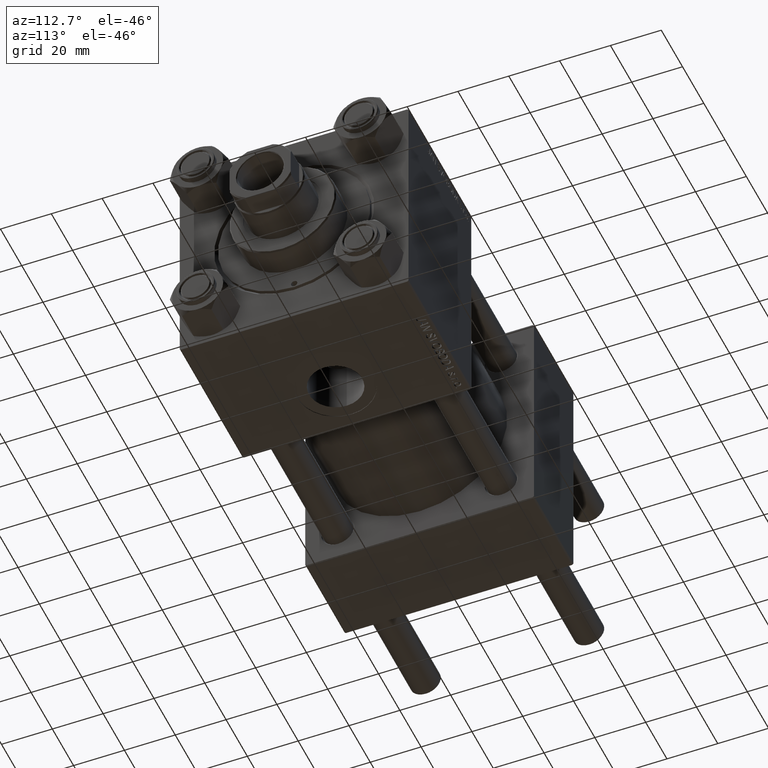
[diagram: clean part render]
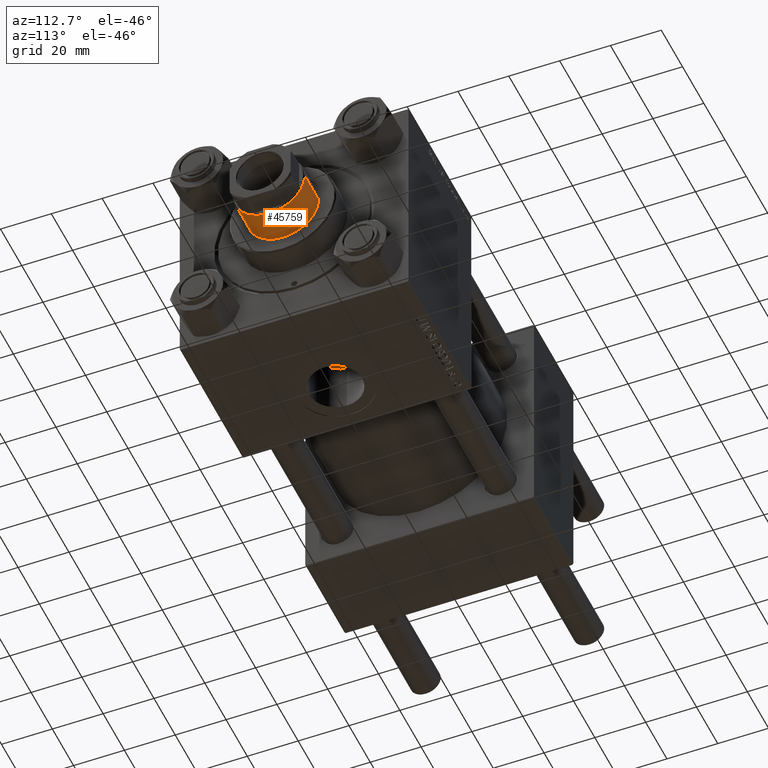
[diagram: same view with one face highlighted and labeled with its STEP entity id]
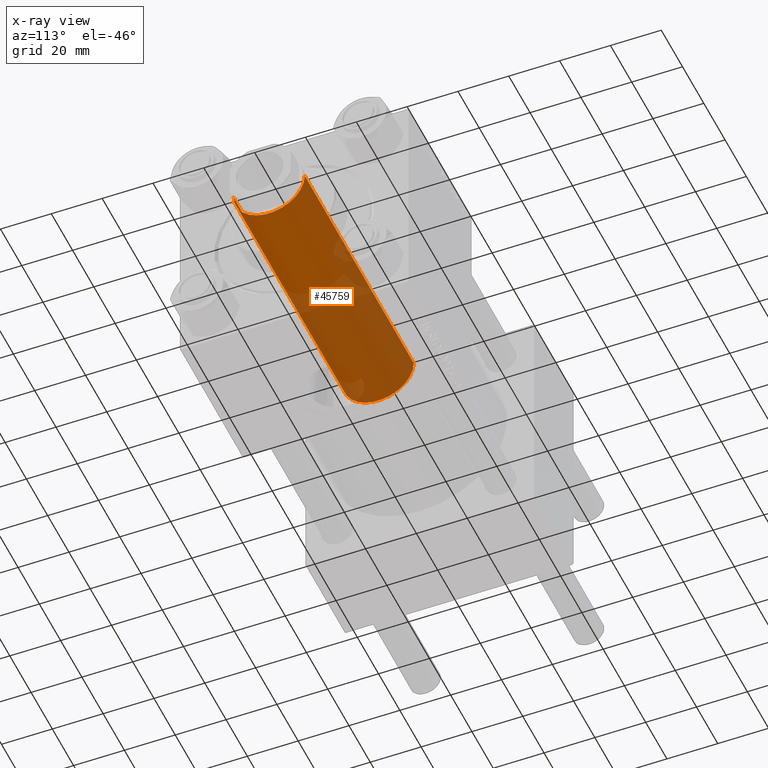
[diagram: x-ray of the same camera — body ghosted, the highlighted face saturated]
A machine part, auxiliary view. The second image highlights one B-rep face of the part: STEP entity #45759.
The next image is the same camera in x-ray: the body ghosted, the highlighted face saturated — about 58% of this face is hidden behind the body in this view.
In plain terms, the highlighted cylindrical surface (partial cylindrical patch) has radius 14 mm, axis along (-1, 0, 0).
Its self-contained STEP definition (entity closure, byte-faithful):
#78 = DIRECTION ( 'NONE',  ( -1.000000000000000000, 0.000000000000000000, 0.000000000000000000 ) ) ;
#887 = EDGE_CURVE ( 'NONE', #37973, #17913, #46382, .T. ) ;
#1103 = ORIENTED_EDGE ( 'NONE', *, *, #31330, .T. ) ;
#1244 = DIRECTION ( 'NONE',  ( 0.000000000000000000, 0.000000000000000000, 1.000000000000000000 ) ) ;
#2735 = ORIENTED_EDGE ( 'NONE', *, *, #31270, .F. ) ;
#2742 = CARTESIAN_POINT ( 'NONE',  ( -14.00000000000000178, 0.000000000000000000, 39.00000000000000000 ) ) ;
#3640 = EDGE_CURVE ( 'NONE', #39127, #29601, #33547, .T. ) ;
#3872 = FACE_OUTER_BOUND ( 'NONE', #22368, .T. ) ;
#4124 = CARTESIAN_POINT ( 'NONE',  ( 0.000000000000000000, 0.000000000000000000, 142.0000000000000000 ) ) ;
#7491 = ORIENTED_EDGE ( 'NONE', *, *, #3640, .T. ) ;
#8544 = VECTOR ( 'NONE', #14148, 1000.000000000000000 ) ;
#9596 = CARTESIAN_POINT ( 'NONE',  ( 0.000000000000000000, 0.000000000000000000, 39.00000000000000000 ) ) ;
#11661 = DIRECTION ( 'NONE',  ( 1.000000000000000000, 0.000000000000000000, 0.000000000000000000 ) ) ;
#13381 = ORIENTED_EDGE ( 'NONE', *, *, #887, .T. ) ;
#14148 = DIRECTION ( 'NONE',  ( -0.000000000000000000, -0.000000000000000000, -1.000000000000000000 ) ) ;
#15130 = CARTESIAN_POINT ( 'NONE',  ( -14.00000000000000178, 0.000000000000000000, 141.5000000000000000 ) ) ;
#15697 = AXIS2_PLACEMENT_3D ( 'NONE', #38210, #35852, #11661 ) ;
#17913 = VERTEX_POINT ( 'NONE', #35118 ) ;
#19309 = CYLINDRICAL_SURFACE ( 'NONE', #21847, 14.00000000000000178 ) ;
#21459 = CARTESIAN_POINT ( 'NONE',  ( 14.00000000000000178, 1.714505518806294835E-15, 39.00000000000000000 ) ) ;
#21847 = AXIS2_PLACEMENT_3D ( 'NONE', #4124, #34712, #78 ) ;
#22368 = EDGE_LOOP ( 'NONE', ( #13381, #1103, #7491, #2735 ) ) ;
#25025 = DIRECTION ( 'NONE',  ( 1.000000000000000000, 0.000000000000000000, 0.000000000000000000 ) ) ;
#25031 = CARTESIAN_POINT ( 'NONE',  ( 14.00000000000000178, 1.714505518806294835E-15, 142.0000000000000000 ) ) ;
#29601 = VERTEX_POINT ( 'NONE', #2742 ) ;
#30665 = DIRECTION ( 'NONE',  ( -0.000000000000000000, -0.000000000000000000, -1.000000000000000000 ) ) ;
#31270 = EDGE_CURVE ( 'NONE', #37973, #29601, #46334, .T. ) ;
#31330 = EDGE_CURVE ( 'NONE', #17913, #39127, #48544, .T. ) ;
#33547 = CIRCLE ( 'NONE', #43237, 14.00000000000000178 ) ;
#34712 = DIRECTION ( 'NONE',  ( -0.000000000000000000, -0.000000000000000000, -1.000000000000000000 ) ) ;
#35118 = CARTESIAN_POINT ( 'NONE',  ( 14.00000000000000178, 1.714505518806294835E-15, 141.5000000000000000 ) ) ;
#35852 = DIRECTION ( 'NONE',  ( 0.000000000000000000, 0.000000000000000000, -1.000000000000000000 ) ) ;
#37973 = VERTEX_POINT ( 'NONE', #15130 ) ;
#38210 = CARTESIAN_POINT ( 'NONE',  ( 0.000000000000000000, 0.000000000000000000, 141.5000000000000000 ) ) ;
#39127 = VERTEX_POINT ( 'NONE', #21459 ) ;
#43237 = AXIS2_PLACEMENT_3D ( 'NONE', #9596, #1244, #25025 ) ;
#45759 = ADVANCED_FACE ( 'NONE', ( #3872 ), #19309, .T. ) ;
#46334 = LINE ( 'NONE', #49881, #49724 ) ;
#46382 = CIRCLE ( 'NONE', #15697, 14.00000000000000178 ) ;
#48544 = LINE ( 'NONE', #25031, #8544 ) ;
#49724 = VECTOR ( 'NONE', #30665, 1000.000000000000000 ) ;
#49881 = CARTESIAN_POINT ( 'NONE',  ( -14.00000000000000178, 0.000000000000000000, 142.0000000000000000 ) ) ;